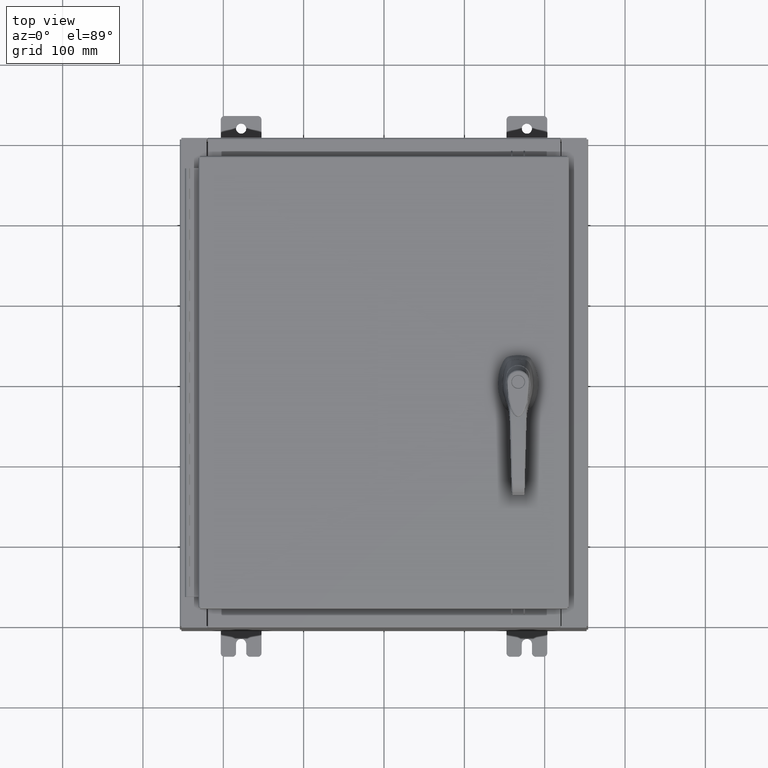
[diagram: clean part render]
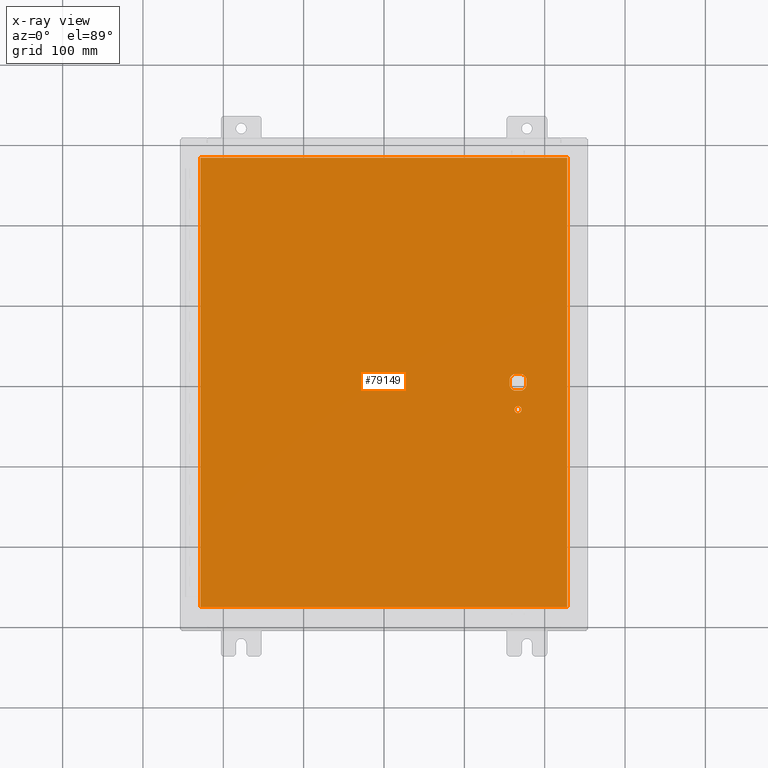
[diagram: x-ray — body ghosted, one internal face saturated and labeled with its STEP entity id]
A machine part, top view, then the same camera in x-ray: the body is ghosted and one INTERNAL B-rep face — a face not visible from any outside direction — is saturated and labeled: STEP entity #79149.
In plain terms, the highlighted planar face has unit normal (0, 0, -1).
Its self-contained STEP definition (entity closure, byte-faithful):
#393 = AXIS2_PLACEMENT_3D ( 'NONE', #64552, #12214, #73367 ) ;
#2828 = LINE ( 'NONE', #55448, #23367 ) ;
#4338 = VECTOR ( 'NONE', #12556, 39.37007874015748100 ) ;
#4684 = VERTEX_POINT ( 'NONE', #47413 ) ;
#4926 = PLANE ( 'NONE',  #100362 ) ;
#5413 = LINE ( 'NONE', #9798, #95879 ) ;
#5725 = VERTEX_POINT ( 'NONE', #17886 ) ;
#6623 = EDGE_CURVE ( 'NONE', #4684, #8304, #101473, .T. ) ;
#6739 = AXIS2_PLACEMENT_3D ( 'NONE', #93477, #40973, #102327 ) ;
#6742 = LINE ( 'NONE', #12248, #73745 ) ;
#7334 = ORIENTED_EDGE ( 'NONE', *, *, #52111, .T. ) ;
#7678 = CARTESIAN_POINT ( 'NONE',  ( 6.577999999999998500, 0.0000000000000000000, -0.07470000000000003000 ) ) ;
#8304 = VERTEX_POINT ( 'NONE', #53678 ) ;
#9798 = CARTESIAN_POINT ( 'NONE',  ( 6.175000000000072700, 0.0000000000000000000, -0.07470000000000003000 ) ) ;
#9866 = CARTESIAN_POINT ( 'NONE',  ( 6.980999999999924400, -0.2002273707563080300, -0.07470000000000003000 ) ) ;
#11512 = ORIENTED_EDGE ( 'NONE', *, *, #105781, .F. ) ;
#11619 = ORIENTED_EDGE ( 'NONE', *, *, #69049, .T. ) ;
#12214 = DIRECTION ( 'NONE',  ( -0.0000000000000000000, -0.0000000000000000000, 1.000000000000000000 ) ) ;
#12248 = CARTESIAN_POINT ( 'NONE',  ( -8.990300000000001300, -11.00630000000000100, -0.07469999999999910000 ) ) ;
#12349 = VERTEX_POINT ( 'NONE', #52008 ) ;
#12556 = DIRECTION ( 'NONE',  ( 0.0000000000000000000, -1.000000000000000000, 0.0000000000000000000 ) ) ;
#12786 = EDGE_CURVE ( 'NONE', #47677, #99209, #47215, .T. ) ;
#12820 = ORIENTED_EDGE ( 'NONE', *, *, #79055, .F. ) ;
#13329 = VERTEX_POINT ( 'NONE', #108635 ) ;
#13748 = DIRECTION ( 'NONE',  ( -1.000000000000000000, 0.0000000000000000000, -0.0000000000000000000 ) ) ;
#14526 = EDGE_CURVE ( 'NONE', #5725, #12349, #43099, .T. ) ;
#15995 = VERTEX_POINT ( 'NONE', #48580 ) ;
#16481 = DIRECTION ( 'NONE',  ( -1.000000000000000000, 0.0000000000000000000, 0.0000000000000000000 ) ) ;
#17886 = CARTESIAN_POINT ( 'NONE',  ( 6.377772629243688500, -0.4029999999999250300, -0.07470000000000003000 ) ) ;
#18147 = CARTESIAN_POINT ( 'NONE',  ( 8.990299999999999500, 11.00630000000000000, -0.07470000000000019700 ) ) ;
#21151 = ORIENTED_EDGE ( 'NONE', *, *, #105116, .F. ) ;
#22621 = VECTOR ( 'NONE', #26923, 39.37007874015748100 ) ;
#22902 = CARTESIAN_POINT ( 'NONE',  ( 0.0000000000000000000, -0.4029999999999252000, -0.07470000000000003000 ) ) ;
#23367 = VECTOR ( 'NONE', #64215, 39.37007874015748100 ) ;
#24531 = FACE_BOUND ( 'NONE', #106420, .T. ) ;
#25631 = CARTESIAN_POINT ( 'NONE',  ( 8.990299999999997700, 11.00630000000000000, -0.07470000000000000300 ) ) ;
#26923 = DIRECTION ( 'NONE',  ( -1.000000000000000000, -0.0000000000000000000, -0.0000000000000000000 ) ) ;
#27912 = CIRCLE ( 'NONE', #6739, 0.1715000000000000700 ) ;
#29476 = VERTEX_POINT ( 'NONE', #25631 ) ;
#29636 = LINE ( 'NONE', #60742, #73412 ) ;
#30243 = EDGE_CURVE ( 'NONE', #8304, #39773, #5413, .T. ) ;
#30828 = CARTESIAN_POINT ( 'NONE',  ( -8.990299999999999500, 11.00630000000000000, -0.07470000000000000300 ) ) ;
#31575 = ORIENTED_EDGE ( 'NONE', *, *, #60204, .T. ) ;
#35450 = CARTESIAN_POINT ( 'NONE',  ( 6.577999999999998500, -1.338000000000000100, -0.07470000000000003000 ) ) ;
#36497 = DIRECTION ( 'NONE',  ( 0.0000000000000000000, 1.000000000000000000, 0.0000000000000000000 ) ) ;
#36540 = CARTESIAN_POINT ( 'NONE',  ( 6.778227370756308500, 0.4029999999999250300, -0.07470000000000003000 ) ) ;
#39773 = VERTEX_POINT ( 'NONE', #40398 ) ;
#40074 = DIRECTION ( 'NONE',  ( 1.000000000000000000, 0.0000000000000000000, 0.0000000000000000000 ) ) ;
#40199 = DIRECTION ( 'NONE',  ( -0.0000000000000000000, -0.0000000000000000000, 1.000000000000000000 ) ) ;
#40398 = CARTESIAN_POINT ( 'NONE',  ( 6.175000000000072700, -0.2002273707563079800, -0.07470000000000003000 ) ) ;
#40973 = DIRECTION ( 'NONE',  ( -0.0000000000000000000, -0.0000000000000000000, 1.000000000000000000 ) ) ;
#41086 = AXIS2_PLACEMENT_3D ( 'NONE', #35450, #96787, #44239 ) ;
#41214 = VERTEX_POINT ( 'NONE', #105718 ) ;
#43099 = LINE ( 'NONE', #22902, #71861 ) ;
#43740 = ORIENTED_EDGE ( 'NONE', *, *, #104262, .F. ) ;
#44239 = DIRECTION ( 'NONE',  ( -1.000000000000000000, 0.0000000000000000000, 0.0000000000000000000 ) ) ;
#45847 = DIRECTION ( 'NONE',  ( -1.000000000000000000, 0.0000000000000000000, 0.0000000000000000000 ) ) ;
#46210 = DIRECTION ( 'NONE',  ( -0.0000000000000000000, -0.0000000000000000000, 1.000000000000000000 ) ) ;
#46376 = CARTESIAN_POINT ( 'NONE',  ( 6.749499999999998500, -1.338000000000000100, -0.07470000000000003000 ) ) ;
#46588 = CARTESIAN_POINT ( 'NONE',  ( 6.577999999999998500, 0.0000000000000000000, -0.07470000000000003000 ) ) ;
#47215 = CIRCLE ( 'NONE', #393, 0.4499999999999156900 ) ;
#47364 = DIRECTION ( 'NONE',  ( 1.000000000000000000, -0.0000000000000000000, -0.0000000000000000000 ) ) ;
#47413 = CARTESIAN_POINT ( 'NONE',  ( 6.377772629243688500, 0.4029999999999252000, -0.07470000000000003000 ) ) ;
#47677 = VERTEX_POINT ( 'NONE', #67585 ) ;
#47890 = EDGE_LOOP ( 'NONE', ( #21151, #12820, #43740, #11512 ) ) ;
#48580 = CARTESIAN_POINT ( 'NONE',  ( 6.406499999999998500, -1.338000000000000100, -0.07470000000000003000 ) ) ;
#51764 = AXIS2_PLACEMENT_3D ( 'NONE', #7678, #68817, #16481 ) ;
#52008 = CARTESIAN_POINT ( 'NONE',  ( 6.778227370756308500, -0.4029999999999252000, -0.07470000000000003000 ) ) ;
#52111 = EDGE_CURVE ( 'NONE', #12349, #87658, #85172, .T. ) ;
#52270 = EDGE_CURVE ( 'NONE', #47677, #87658, #94815, .T. ) ;
#53678 = CARTESIAN_POINT ( 'NONE',  ( 6.175000000000072700, 0.2002273707563080300, -0.07470000000000003000 ) ) ;
#53792 = EDGE_CURVE ( 'NONE', #99209, #4684, #2828, .T. ) ;
#55156 = ORIENTED_EDGE ( 'NONE', *, *, #53792, .T. ) ;
#55448 = CARTESIAN_POINT ( 'NONE',  ( 0.0000000000000000000, 0.4029999999999252000, -0.07470000000000003000 ) ) ;
#55542 = VECTOR ( 'NONE', #36497, 39.37007874015748100 ) ;
#60204 = EDGE_CURVE ( 'NONE', #78599, #15995, #27912, .T. ) ;
#60742 = CARTESIAN_POINT ( 'NONE',  ( -8.990299999999999500, 11.00630000000000100, -0.07470000000000019700 ) ) ;
#61841 = ORIENTED_EDGE ( 'NONE', *, *, #12786, .T. ) ;
#63088 = EDGE_CURVE ( 'NONE', #39773, #5725, #89256, .T. ) ;
#64215 = DIRECTION ( 'NONE',  ( -1.000000000000000000, 0.0000000000000000000, 0.0000000000000000000 ) ) ;
#64552 = CARTESIAN_POINT ( 'NONE',  ( 6.577999999999998500, 0.0000000000000000000, -0.07470000000000003000 ) ) ;
#64895 = CARTESIAN_POINT ( 'NONE',  ( 6.980999999999924400, 0.0000000000000000000, -0.07470000000000003000 ) ) ;
#66081 = DIRECTION ( 'NONE',  ( 0.0000000000000000000, 0.0000000000000000000, -1.000000000000000000 ) ) ;
#67585 = CARTESIAN_POINT ( 'NONE',  ( 6.980999999999924400, 0.2002273707563080300, -0.07470000000000003000 ) ) ;
#68817 = DIRECTION ( 'NONE',  ( -0.0000000000000000000, -0.0000000000000000000, 1.000000000000000000 ) ) ;
#69049 = EDGE_CURVE ( 'NONE', #15995, #78599, #101033, .T. ) ;
#69145 = LINE ( 'NONE', #18147, #22621 ) ;
#69546 = DIRECTION ( 'NONE',  ( 0.0000000000000000000, -1.000000000000000000, 0.0000000000000000000 ) ) ;
#70982 = VERTEX_POINT ( 'NONE', #30828 ) ;
#71861 = VECTOR ( 'NONE', #40074, 39.37007874015748100 ) ;
#73367 = DIRECTION ( 'NONE',  ( -1.000000000000000000, 0.0000000000000000000, 0.0000000000000000000 ) ) ;
#73412 = VECTOR ( 'NONE', #69546, 39.37007874015748100 ) ;
#73745 = VECTOR ( 'NONE', #47364, 39.37007874015748100 ) ;
#78599 = VERTEX_POINT ( 'NONE', #46376 ) ;
#79055 = EDGE_CURVE ( 'NONE', #13329, #41214, #6742, .T. ) ;
#79149 = ADVANCED_FACE ( 'NONE', ( #24531, #91640, #94421 ), #4926, .T. ) ;
#83363 = CARTESIAN_POINT ( 'NONE',  ( 0.0000000000000000000, 0.0000000000000000000, -0.07470000000000000300 ) ) ;
#85172 = CIRCLE ( 'NONE', #51764, 0.4499999999999156900 ) ;
#87086 = AXIS2_PLACEMENT_3D ( 'NONE', #92712, #40199, #101541 ) ;
#87658 = VERTEX_POINT ( 'NONE', #9866 ) ;
#88402 = ORIENTED_EDGE ( 'NONE', *, *, #14526, .T. ) ;
#88486 = ORIENTED_EDGE ( 'NONE', *, *, #6623, .T. ) ;
#89002 = CARTESIAN_POINT ( 'NONE',  ( 8.990299999999997700, -11.00630000000000000, -0.07470000000000021100 ) ) ;
#89256 = CIRCLE ( 'NONE', #87086, 0.4499999999999156900 ) ;
#89645 = AXIS2_PLACEMENT_3D ( 'NONE', #46588, #46210, #45847 ) ;
#91640 = FACE_OUTER_BOUND ( 'NONE', #47890, .T. ) ;
#92712 = CARTESIAN_POINT ( 'NONE',  ( 6.577999999999998500, 0.0000000000000000000, -0.07470000000000003000 ) ) ;
#93477 = CARTESIAN_POINT ( 'NONE',  ( 6.577999999999998500, -1.338000000000000100, -0.07470000000000003000 ) ) ;
#94421 = FACE_BOUND ( 'NONE', #103143, .T. ) ;
#94815 = LINE ( 'NONE', #64895, #4338 ) ;
#94920 = ORIENTED_EDGE ( 'NONE', *, *, #52270, .F. ) ;
#95879 = VECTOR ( 'NONE', #97475, 39.37007874015748100 ) ;
#96787 = DIRECTION ( 'NONE',  ( -0.0000000000000000000, -0.0000000000000000000, 1.000000000000000000 ) ) ;
#97475 = DIRECTION ( 'NONE',  ( 0.0000000000000000000, -1.000000000000000000, 0.0000000000000000000 ) ) ;
#99209 = VERTEX_POINT ( 'NONE', #36540 ) ;
#99448 = LINE ( 'NONE', #89002, #55542 ) ;
#100362 = AXIS2_PLACEMENT_3D ( 'NONE', #83363, #66081, #13748 ) ;
#101033 = CIRCLE ( 'NONE', #41086, 0.1715000000000000700 ) ;
#101473 = CIRCLE ( 'NONE', #89645, 0.4499999999999156900 ) ;
#101541 = DIRECTION ( 'NONE',  ( -1.000000000000000000, 8.881784197001256300E-016, 0.0000000000000000000 ) ) ;
#102166 = ORIENTED_EDGE ( 'NONE', *, *, #63088, .T. ) ;
#102327 = DIRECTION ( 'NONE',  ( -1.000000000000000000, 0.0000000000000000000, 0.0000000000000000000 ) ) ;
#103143 = EDGE_LOOP ( 'NONE', ( #7334, #94920, #61841, #55156, #88486, #111783, #102166, #88402 ) ) ;
#104262 = EDGE_CURVE ( 'NONE', #70982, #13329, #29636, .T. ) ;
#105116 = EDGE_CURVE ( 'NONE', #41214, #29476, #99448, .T. ) ;
#105718 = CARTESIAN_POINT ( 'NONE',  ( 8.990299999999997700, -11.00630000000000000, -0.07470000000000000300 ) ) ;
#105781 = EDGE_CURVE ( 'NONE', #29476, #70982, #69145, .T. ) ;
#106420 = EDGE_LOOP ( 'NONE', ( #31575, #11619 ) ) ;
#108635 = CARTESIAN_POINT ( 'NONE',  ( -8.990299999999997700, -11.00630000000000100, -0.07470000000000000300 ) ) ;
#111783 = ORIENTED_EDGE ( 'NONE', *, *, #30243, .T. ) ;